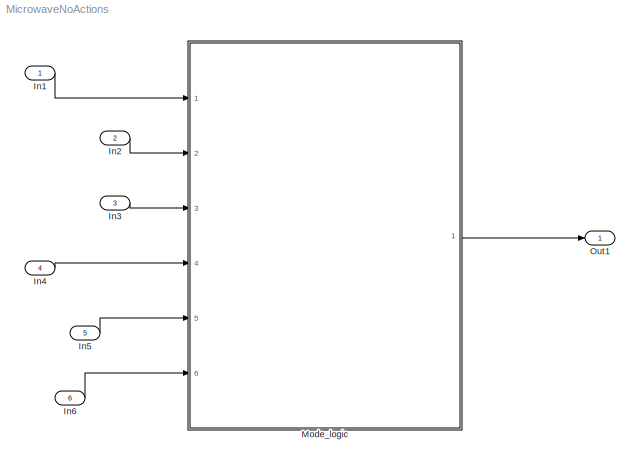
MODEL MicrowaveNoActions
KIND model
BLOCK [Inport] In1
  IconDisplay = Port number
  OutDataTypeStr = boolean
  SID = 18
BLOCK [Inport] In2
  IconDisplay = Port number
  OutDataTypeStr = boolean
  Port = 2
  SID = 19
BLOCK [Inport] In3
  IconDisplay = Port number
  OutDataTypeStr = boolean
  Port = 3
  SID = 20
BLOCK [Inport] In4
  IconDisplay = Port number
  OutDataTypeStr = boolean
  Port = 4
  SID = 21
BLOCK [Inport] In5
  IconDisplay = Port number
  OutDataTypeStr = boolean
  Port = 5
  SID = 22
BLOCK [Inport] In6
  IconDisplay = Port number
  OutDataTypeStr = boolean
  Port = 6
  SID = 23
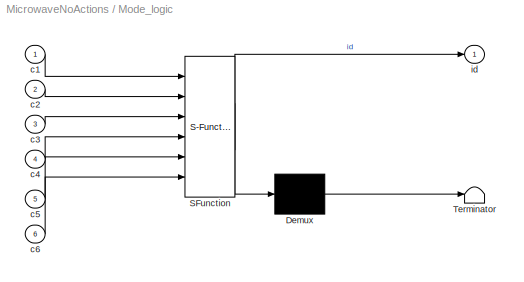
BLOCK [SubSystem] Mode_logic
  ErrorFcn = Stateflow.Translate.translate
  PermitHierarchicalResolution = ExplicitOnly
  Ports = [6, 1]
  RequestExecContextInheritance = off
  SFBlockType = Chart
  SID = 1
  TreatAsAtomicUnit = on
  Variant = off
BLOCK [Demux] Mode_logic/ Demux 
  Outputs = 1
  Ports = [1, 1]
  SID = 1::21
BLOCK [S-Function] Mode_logic/ SFunction 
  EnableBusSupport = on
  FunctionName = sf_sfun
  PortCounts = [6 2]
  Ports = [6, 2]
  SFcnIsStateOwnerBlock = off
  SFunctionDeploymentMode = off
  SID = 1::20
  Tag = Stateflow S-Function MicrowaveNoActions 1
BLOCK [Terminator] Mode_logic/ Terminator 
  SID = 1::22
BLOCK [Inport] Mode_logic/c1
  IconDisplay = Port number
  SID = 1::23
BLOCK [Inport] Mode_logic/c2
  IconDisplay = Port number
  Port = 2
  SID = 1::24
BLOCK [Inport] Mode_logic/c3
  IconDisplay = Port number
  Port = 3
  SID = 1::25
BLOCK [Inport] Mode_logic/c4
  IconDisplay = Port number
  Port = 4
  SID = 1::26
BLOCK [Inport] Mode_logic/c5
  IconDisplay = Port number
  Port = 5
  SID = 1::27
BLOCK [Inport] Mode_logic/c6
  IconDisplay = Port number
  Port = 6
  SID = 1::28
BLOCK [Outport] Mode_logic/id
  IconDisplay = Port number
  SID = 1::29
BLOCK [Outport] Out1
  IconDisplay = Port number
  SID = 17
LINE In1:1 -> Mode_logic:1
LINE In2:1 -> Mode_logic:2
LINE In3:1 -> Mode_logic:3
LINE In4:1 -> Mode_logic:4
LINE In5:1 -> Mode_logic:5
LINE In6:1 -> Mode_logic:6
LINE Mode_logic/ Demux :1 -> Mode_logic/ Terminator :1
LINE Mode_logic/ SFunction :1 -> Mode_logic/ Demux :1
LINE Mode_logic/ SFunction :2 -> Mode_logic/id:1
LINE Mode_logic/c1:1 -> Mode_logic/ SFunction :1
LINE Mode_logic/c2:1 -> Mode_logic/ SFunction :2
LINE Mode_logic/c3:1 -> Mode_logic/ SFunction :3
LINE Mode_logic/c4:1 -> Mode_logic/ SFunction :4
LINE Mode_logic/c5:1 -> Mode_logic/ SFunction :5
LINE Mode_logic/c6:1 -> Mode_logic/ SFunction :6
LINE Mode_logic:1 -> Out1:1
CHART Mode_logic states=4 transitions=12
  STATE_LABEL 'SETUP\\nen: id=1;'
  STATE_LABEL 'COOKING\\nentry: id=2;'
  STATE_LABEL 'SUSPENDED\\nentry: id=3;'
  STATE_LABEL 'RUNNING\\n'
